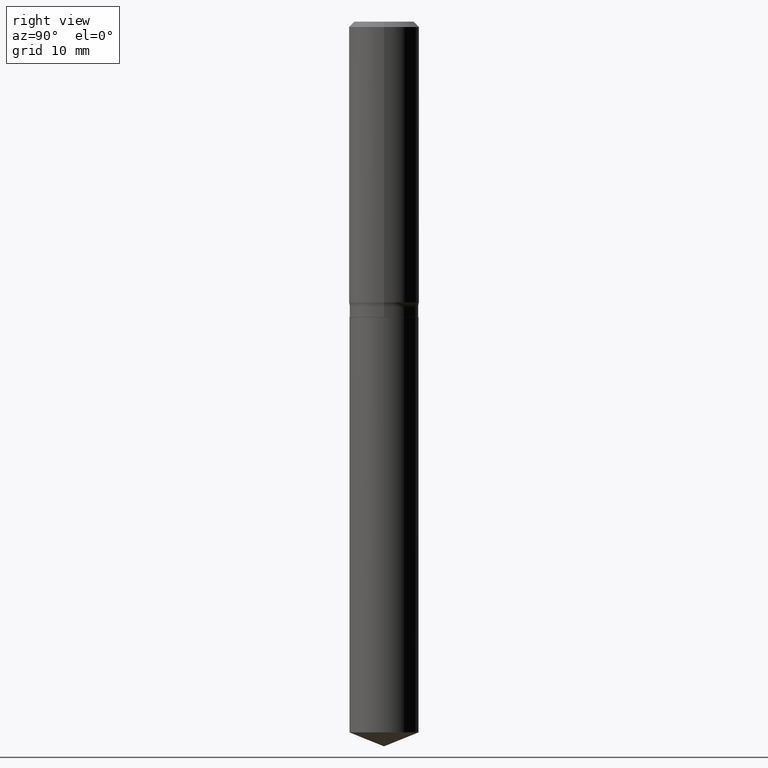
[diagram: clean part render]
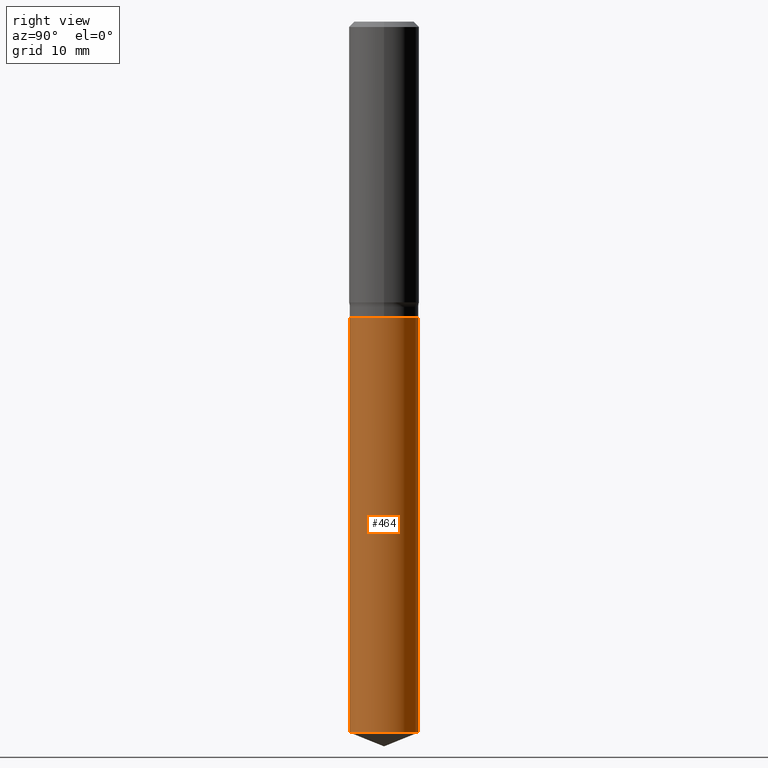
[diagram: same view with one face highlighted and labeled with its STEP entity id]
A machine part, right view. The second image highlights one B-rep face of the part: STEP entity #464.
In plain terms, the highlighted cylindrical surface (edge-blend (fillet) strip) has radius 4.8997 mm, axis along (-0, 0, 1).
Its self-contained STEP definition (entity closure, byte-faithful):
#2 = DIRECTION ( 'NONE',  ( -6.982962677686265133E-15, -1.000000000000000000, 2.832398127179122126E-15 ) ) ;
#27 = ORIENTED_EDGE ( 'NONE', *, *, #228, .F. ) ;
#35 = CYLINDRICAL_SURFACE ( 'NONE', #210, 0.1928999999999999881 ) ;
#49 = DIRECTION ( 'NONE',  ( -2.445507172700810819E-29, 3.491426395809013417E-15, 1.000000000000000000 ) ) ;
#54 = CARTESIAN_POINT ( 'NONE',  ( -1.347013500525640042E-15, -0.1929000000000057335, -1.653399999999999093 ) ) ;
#56 = CARTESIAN_POINT ( 'NONE',  ( 1.370636937281330599E-15, 0.1928999999999942150, -1.653400000000000203 ) ) ;
#76 = FACE_OUTER_BOUND ( 'NONE', #403, .T. ) ;
#98 = VERTEX_POINT ( 'NONE', #54 ) ;
#120 = DIRECTION ( 'NONE',  ( -2.445507172700810819E-29, 3.491426395809013811E-15, 1.000000000000000000 ) ) ;
#148 = VECTOR ( 'NONE', #49, 39.37007874015748143 ) ;
#183 = CARTESIAN_POINT ( 'NONE',  ( 4.043338124146503856E-29, -5.772815245643255193E-15, -1.653399999999999537 ) ) ;
#188 = ORIENTED_EDGE ( 'NONE', *, *, #231, .T. ) ;
#204 = ORIENTED_EDGE ( 'NONE', *, *, #251, .F. ) ;
#210 = AXIS2_PLACEMENT_3D ( 'NONE', #183, #259, #2 ) ;
#214 = ORIENTED_EDGE ( 'NONE', *, *, #481, .T. ) ;
#215 = CARTESIAN_POINT ( 'NONE',  ( 9.725873491592949030E-29, -1.388571476951150390E-14, -3.977063341036398914 ) ) ;
#228 = EDGE_CURVE ( 'NONE', #98, #414, #367, .T. ) ;
#231 = EDGE_CURVE ( 'NONE', #400, #414, #341, .T. ) ;
#232 = CARTESIAN_POINT ( 'NONE',  ( -1.347013500525583441E-15, -0.1929000000000139214, -3.977063341036398469 ) ) ;
#251 = EDGE_CURVE ( 'NONE', #325, #98, #277, .T. ) ;
#259 = DIRECTION ( 'NONE',  ( -2.445507172700810819E-29, 3.491426395809013811E-15, 1.000000000000000000 ) ) ;
#264 = CARTESIAN_POINT ( 'NONE',  ( 1.370636937281273406E-15, 0.1928999999999942150, -1.653400000000000203 ) ) ;
#277 = LINE ( 'NONE', #314, #429 ) ;
#302 = DIRECTION ( 'NONE',  ( -2.445507172700810819E-29, 3.491426395809013811E-15, 1.000000000000000000 ) ) ;
#306 = DIRECTION ( 'NONE',  ( -2.445507172700810819E-29, 3.491426395809013417E-15, 1.000000000000000000 ) ) ;
#314 = CARTESIAN_POINT ( 'NONE',  ( -1.347013500525640042E-15, -0.1929000000000057335, -1.653399999999999093 ) ) ;
#325 = VERTEX_POINT ( 'NONE', #232 ) ;
#340 = CARTESIAN_POINT ( 'NONE',  ( 4.043338124146503856E-29, -5.772815245643255193E-15, -1.653399999999999537 ) ) ;
#341 = LINE ( 'NONE', #264, #148 ) ;
#343 = CIRCLE ( 'NONE', #380, 0.1928999999999999881 ) ;
#361 = DIRECTION ( 'NONE',  ( -6.982962677686265133E-15, -1.000000000000000000, 2.832398127179122126E-15 ) ) ;
#367 = CIRCLE ( 'NONE', #461, 0.1928999999999999881 ) ;
#380 = AXIS2_PLACEMENT_3D ( 'NONE', #215, #120, #361 ) ;
#382 = CARTESIAN_POINT ( 'NONE',  ( 1.370636937281330401E-15, 0.1928999999999861104, -3.977063341036399802 ) ) ;
#400 = VERTEX_POINT ( 'NONE', #382 ) ;
#403 = EDGE_LOOP ( 'NONE', ( #214, #188, #27, #204 ) ) ;
#414 = VERTEX_POINT ( 'NONE', #56 ) ;
#429 = VECTOR ( 'NONE', #306, 39.37007874015748143 ) ;
#461 = AXIS2_PLACEMENT_3D ( 'NONE', #340, #302, #462 ) ;
#462 = DIRECTION ( 'NONE',  ( -6.982962677686265133E-15, -1.000000000000000000, 2.832398127179122126E-15 ) ) ;
#464 = ADVANCED_FACE ( 'NONE', ( #76 ), #35, .T. ) ;
#481 = EDGE_CURVE ( 'NONE', #325, #400, #343, .T. ) ;